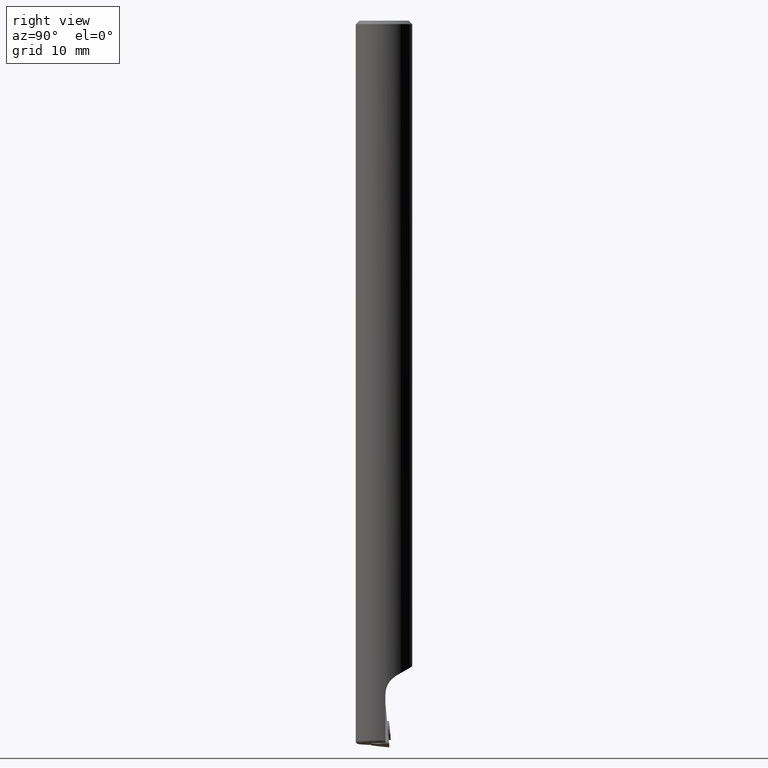
[diagram: clean part render]
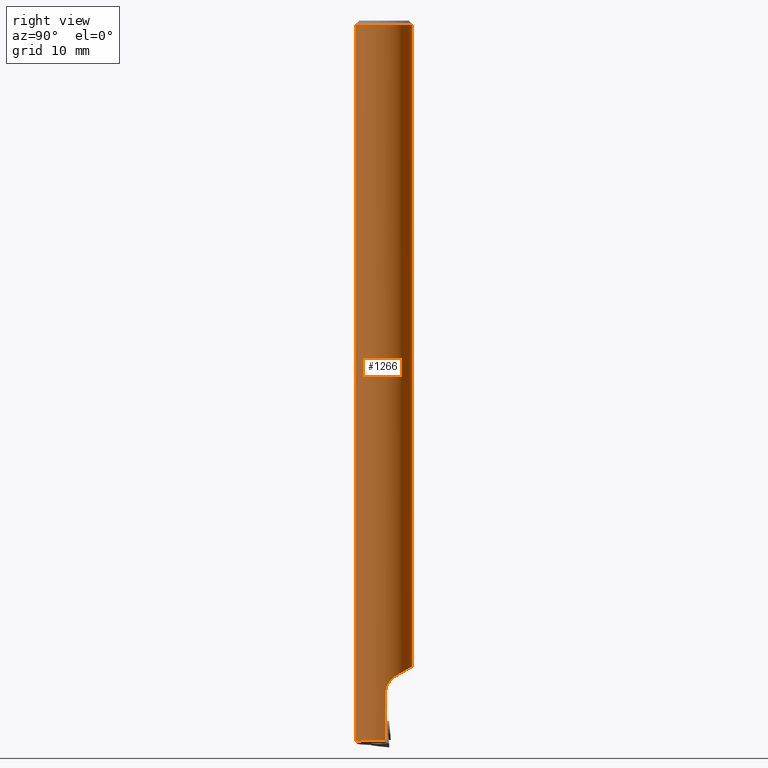
[diagram: same view with one face highlighted and labeled with its STEP entity id]
A machine part, right view. The second image highlights one B-rep face of the part: STEP entity #1266.
In plain terms, the highlighted cylindrical surface (edge-blend (fillet) strip) has radius 4 mm, axis along (-0, -0, 1).
Its self-contained STEP definition (entity closure, byte-faithful):
#484=VERTEX_POINT('NONE',#1330);
#506=EDGE_CURVE('NONE',#1064,#1238,#1353,.T.);
#534=EDGE_CURVE('NONE',#484,#1214,#1383,.F.);
#698=EDGE_CURVE('NONE',#1040,#782,#1572,.T.);
#722=VERTEX_POINT('NONE',#1598);
#748=EDGE_CURVE('NONE',#1040,#1214,#1629,.T.);
#782=VERTEX_POINT('NONE',#1669);
#802=EDGE_CURVE('NONE',#782,#1166,#1692,.T.);
#1008=EDGE_CURVE('NONE',#1064,#484,#1917,.T.);
#1040=VERTEX_POINT('NONE',#1951);
#1064=VERTEX_POINT('NONE',#1977);
#1144=EDGE_CURVE('NONE',#1238,#722,#2061,.T.);
#1166=VERTEX_POINT('NONE',#2086);
#1168=EDGE_CURVE('NONE',#722,#1166,#2088,.T.);
#1214=VERTEX_POINT('NONE',#2142);
#1238=VERTEX_POINT('NONE',#2167);
#1266=ADVANCED_FACE('NONE',(#2196),#2197,.T.);
#1330=CARTESIAN_POINT('',(4.89858719658941E-016,4.0,86.5));
#1353=ELLIPSE('',#2291,4.618802153517,4.0);
#1383=CIRCLE('',#2352,4.0);
#1572=B_SPLINE_CURVE_WITH_KNOTS('',3,(#3184,#3185,#3186,#3187,#3188,#3189,#3190,#3191,#3192,#3193,#3194,#3195,#3196),.UNSPECIFIED.,.F.,.F.,(4,3,3,3,4),(0.411387374298297,0.609157054338907,0.740114882305481,0.921460276347262,1.0),.UNSPECIFIED.);
#1598=CARTESIAN_POINT('',(3.99499687108764,0.2,-8.4));
#1629=LINE('',#3268,#3269);
#1669=CARTESIAN_POINT('',(4.0,-8.4853557999143E-015,-14.9366282189575));
#1692=B_SPLINE_CURVE_WITH_KNOTS('',3,(#3348,#3349,#3350,#3351),.UNSPECIFIED.,.F.,.F.,(4,4),(0.0,1.0),.UNSPECIFIED.);
#1917=LINE('',#3696,#3697);
#1951=CARTESIAN_POINT('',(0.0,-4.0,-15.1305370023047));
#1977=CARTESIAN_POINT('',(4.89858719658941E-016,4.0,-4.47401816951056));
#2061=B_SPLINE_CURVE_WITH_KNOTS('',3,(#3937,#3938,#3939,#3940,#3941,#3942,#3943,#3944,#3945,#3946,#3947,#3948,#3949,#3950,#3951,#3952,#3953,#3954,#3955,#3956,#3957,#3958,#3959,#3960),.UNSPECIFIED.,.F.,.F.,(4,2,2,2,2,2,2,2,2,2,2,4),(12.3579714866036,13.1376968260286,13.8471878725581,14.2019333958228,14.5566789190876,15.3038409607786,16.0510030024696,16.7981650441606,17.5453270858516,18.1683930485529,18.7914590112542,19.4145249739556),.UNSPECIFIED.);
#2086=CARTESIAN_POINT('',(3.99499687108763,0.199999999999998,-14.9368707566175));
#2088=LINE('',#4027,#4028);
#2142=CARTESIAN_POINT('',(0.0,-4.0,86.5));
#2167=CARTESIAN_POINT('',(3.62077339804633,1.70000000000001,-5.80192378864668));
#2196=FACE_OUTER_BOUND('',#5571,.T.);
#2197=CYLINDRICAL_SURFACE('',#5572,4.0);
#2291=AXIS2_PLACEMENT_3D('',#5642,#5643,#5644);
#2352=AXIS2_PLACEMENT_3D('',#5677,#5678,#5679);
#3184=CARTESIAN_POINT('',(-1.7728873924483E-015,-4.0,-15.1305370023047));
#3185=CARTESIAN_POINT('',(0.703315065031312,-4.0,-15.0964423173587));
#3186=CARTESIAN_POINT('',(1.40589534225652,-3.81027960231278,-15.0623936576004));
#3187=CARTESIAN_POINT('',(2.01366445791217,-3.45617642069112,-15.0329191308422));
#3188=CARTESIAN_POINT('',(2.41611301966888,-3.22169870129701,-15.0134018822741));
#3189=CARTESIAN_POINT('',(2.77712347794861,-2.91632496693361,-14.9958815191775));
#3190=CARTESIAN_POINT('',(3.07526107339347,-2.55788376015621,-14.981450957595));
#3191=CARTESIAN_POINT('',(3.48811061865637,-2.06152807914681,-14.9614680675528));
#3192=CARTESIAN_POINT('',(3.77800489030292,-1.46400862073769,-14.947381906667));
#3193=CARTESIAN_POINT('',(3.91237260813632,-0.832670748318083,-14.9408796133918));
#3194=CARTESIAN_POINT('',(3.97056655059759,-0.559241680580531,-14.9380635048293));
#3195=CARTESIAN_POINT('',(4.0,-0.279258486622844,-14.9366282242094));
#3196=CARTESIAN_POINT('',(4.0,-9.12670546776573E-015,-14.9366282189575));
#3268=CARTESIAN_POINT('',(0.0,-4.0,0.0));
#3269=VECTOR('',#5999,1000.0);
#3348=CARTESIAN_POINT('',(4.0,-9.12670546776573E-015,-14.9366282189575));
#3349=CARTESIAN_POINT('',(4.0,0.0666943474709319,-14.9366282189574));
#3350=CARTESIAN_POINT('',(3.99833157866566,0.133389268299062,-14.936709102026));
#3351=CARTESIAN_POINT('',(3.99499687108764,0.199999999999997,-14.9368707566175));
#3696=CARTESIAN_POINT('',(4.89858719658941E-016,4.0,0.0));
#3697=VECTOR('',#6362,1000.0);
#3937=CARTESIAN_POINT('',(2.28558469737582,3.28269745653197,-5.40114002816351));
#3938=CARTESIAN_POINT('',(2.50701951851536,3.12852301772123,-5.39688846799593));
#3939=CARTESIAN_POINT('',(2.70972335986805,2.95367746207782,-5.40418513233944));
#3940=CARTESIAN_POINT('',(3.05122555360107,2.59717920135468,-5.45618152130339));
#3941=CARTESIAN_POINT('',(3.21079127866756,2.3981022074477,-5.50098140092263));
#3942=CARTESIAN_POINT('',(3.41236792927738,2.09063714435057,-5.61052847721881));
#3943=CARTESIAN_POINT('',(3.47362212317848,1.98676415166098,-5.65393955364954));
#3944=CARTESIAN_POINT('',(3.58225146160232,1.78346766556096,-5.7530724707614));
#3945=CARTESIAN_POINT('',(3.62965022865186,1.68406390079414,-5.80880888152298));
#3946=CARTESIAN_POINT('',(3.75578762647215,1.39295948439845,-5.9938999889212));
#3947=CARTESIAN_POINT('',(3.81943726759416,1.20151277984577,-6.14872519837593));
#3948=CARTESIAN_POINT('',(3.9111236331673,0.857231536386372,-6.50959650796662));
#3949=CARTESIAN_POINT('',(3.93949086216808,0.704422631203251,-6.71558301369699));
#3950=CARTESIAN_POINT('',(3.97594482845984,0.455697115901101,-7.16146386739214));
#3951=CARTESIAN_POINT('',(3.98434061998706,0.359359460399476,-7.40198192144801));
#3952=CARTESIAN_POINT('',(3.99380982541122,0.23150048120355,-7.89672137838655));
#3953=CARTESIAN_POINT('',(3.99499687108764,0.2,-8.150945986103));
#3954=CARTESIAN_POINT('',(3.99499687108764,0.2,-8.60768865423378));
#3955=CARTESIAN_POINT('',(3.99410071693948,0.221922064829204,-8.82165020664593));
#3956=CARTESIAN_POINT('',(3.98798540686881,0.313149063253037,-9.24429186444006));
#3957=CARTESIAN_POINT('',(3.98272604400572,0.382434913017023,-9.45297550611413));
#3958=CARTESIAN_POINT('',(3.96108633311694,0.564055930622354,-9.84887138798153));
#3959=CARTESIAN_POINT('',(3.94455207976015,0.676589388383249,-10.0364760911105));
#3960=CARTESIAN_POINT('',(3.91809947218333,0.805292820082682,-10.2070355620331));
#4027=CARTESIAN_POINT('',(3.99499687108764,0.199999999999998,0.0));
#4028=VECTOR('',#6536,1.0);
#5571=EDGE_LOOP('',(#6663,#6664,#6665,#6666,#6667,#6668,#6669,#6670));
#5572=AXIS2_PLACEMENT_3D('',#6671,#6672,#6673);
#5642=CARTESIAN_POINT('',(0.0,0.0,-6.78341924626905));
#5643=DIRECTION('',(3.02866623105412E-015,0.499999999999998,-0.86602540378444));
#5644=DIRECTION('',(-1.45600303795675E-031,-0.86602540378444,-0.499999999999998));
#5677=CARTESIAN_POINT('',(0.0,0.0,86.5));
#5678=DIRECTION('',(-0.0,0.0,1.0));
#5679=DIRECTION('',(0.0,-1.0,0.0));
#5999=DIRECTION('',(0.0,-0.0,1.0));
#6362=DIRECTION('',(0.0,-0.0,1.0));
#6536=DIRECTION('',(0.0,0.0,-1.0));
#6663=ORIENTED_EDGE('',*,*,#506,.F.);
#6664=ORIENTED_EDGE('',*,*,#1008,.T.);
#6665=ORIENTED_EDGE('',*,*,#534,.T.);
#6666=ORIENTED_EDGE('',*,*,#748,.F.);
#6667=ORIENTED_EDGE('',*,*,#698,.T.);
#6668=ORIENTED_EDGE('',*,*,#802,.T.);
#6669=ORIENTED_EDGE('',*,*,#1168,.F.);
#6670=ORIENTED_EDGE('',*,*,#1144,.F.);
#6671=CARTESIAN_POINT('',(0.0,0.0,0.0));
#6672=DIRECTION('',(-0.0,-0.0,1.0));
#6673=DIRECTION('',(0.0,-1.0,0.0));